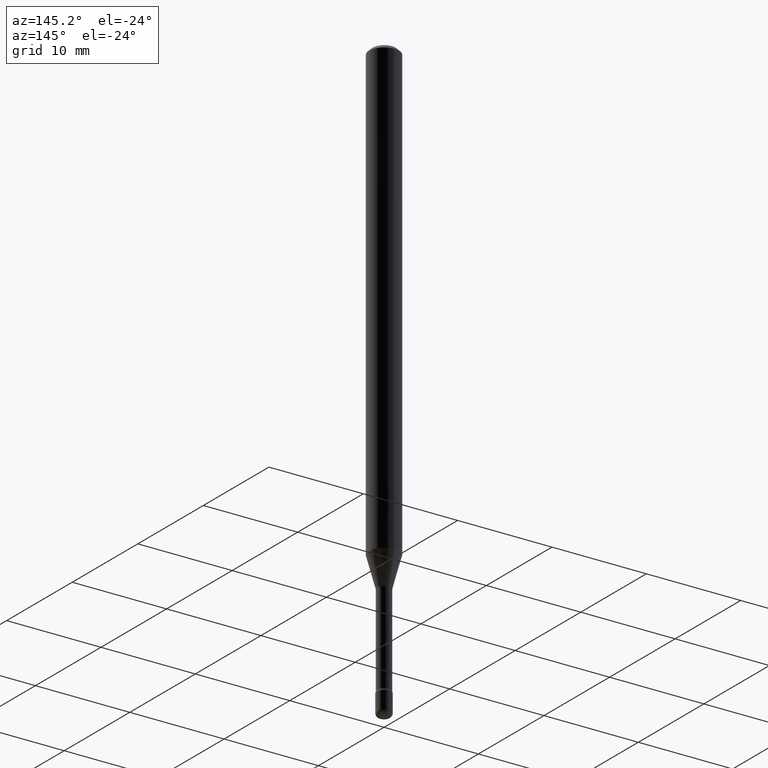
[diagram: clean part render]
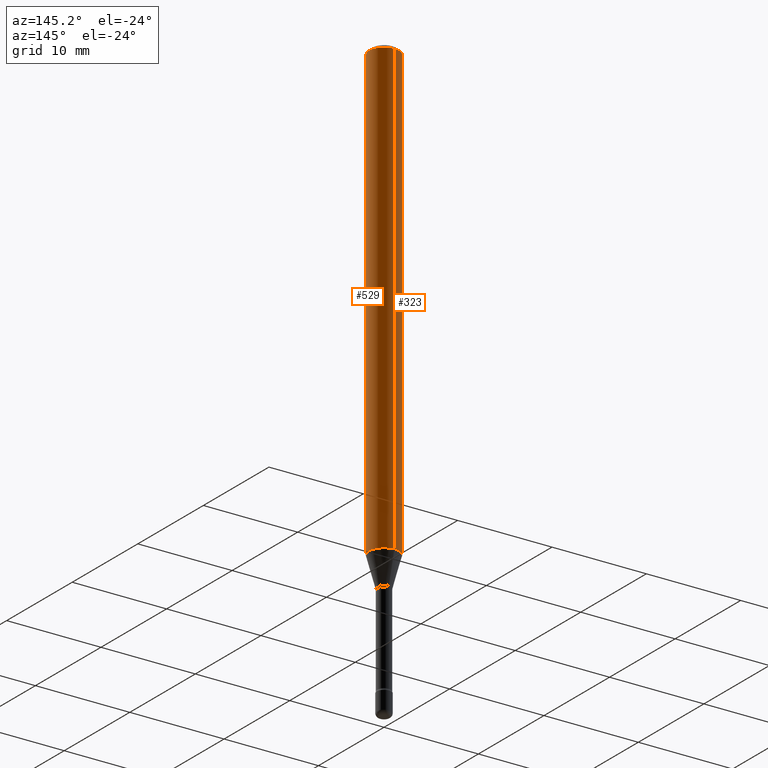
[diagram: same view with one multi-face feature highlighted, each face labeled with its STEP entity id]
A machine part, auxiliary view. The highlighted faces form ONE feature: a constant-radius fillet chain: 2 tangent blend faces with common blend radius 1.5875 mm. The faces share edges in the B-rep.
Their STEP definitions:
[1] entity #323 (Cylinder):
#7 = EDGE_CURVE ( 'NONE', #286, #91, #39, .T. ) ;
#19 = ORIENTED_EDGE ( 'NONE', *, *, #350, .T. ) ;
#39 = CIRCLE ( 'NONE', #172, 0.06250000000000000000 ) ;
#56 = DIRECTION ( 'NONE',  ( -6.982962677686265922E-15, -1.000000000000000000, 4.370956789862821150E-15 ) ) ;
#76 = CARTESIAN_POINT ( 'NONE',  ( -4.364351673553912750E-16, -0.06250000000000005551, -0.01499999999999981036 ) ) ;
#91 = VERTEX_POINT ( 'NONE', #415 ) ;
#106 = CARTESIAN_POINT ( 'NONE',  ( -4.364351673553916201E-16, -0.06250000000000000000, 6.962886991574002702E-16 ) ) ;
#110 = LINE ( 'NONE', #106, #364 ) ;
#120 = CARTESIAN_POINT ( 'NONE',  ( 3.668241477223899538E-31, -5.237167206387711025E-17, -0.01500000000000002720 ) ) ;
#154 = AXIS2_PLACEMENT_3D ( 'NONE', #424, #301, #545 ) ;
#171 = LINE ( 'NONE', #354, #309 ) ;
#172 = AXIS2_PLACEMENT_3D ( 'NONE', #544, #548, #56 ) ;
#175 = CARTESIAN_POINT ( 'NONE',  ( 4.440892098501091590E-16, 0.06249999999999995143, -0.01500000000000024578 ) ) ;
#203 = VERTEX_POINT ( 'NONE', #175 ) ;
#205 = FACE_OUTER_BOUND ( 'NONE', #486, .T. ) ;
#286 = VERTEX_POINT ( 'NONE', #549 ) ;
#295 = DIRECTION ( 'NONE',  ( -2.445494318149262015E-29, 3.491444804258467311E-15, 1.000000000000000000 ) ) ;
#301 = DIRECTION ( 'NONE',  ( -2.445494318149261734E-29, 3.491444804258467311E-15, 1.000000000000000000 ) ) ;
#309 = VECTOR ( 'NONE', #520, 39.37007874015748143 ) ;
#323 = ADVANCED_FACE ( 'NONE', ( #205 ), #509, .T. ) ;
#326 = AXIS2_PLACEMENT_3D ( 'NONE', #120, #557, #483 ) ;
#350 = EDGE_CURVE ( 'NONE', #91, #411, #110, .T. ) ;
#354 = CARTESIAN_POINT ( 'NONE',  ( 4.440892098500625669E-16, 0.06250000000000000000, 2.598580986250918563E-16 ) ) ;
#364 = VECTOR ( 'NONE', #295, 39.37007874015748143 ) ;
#411 = VERTEX_POINT ( 'NONE', #76 ) ;
#415 = CARTESIAN_POINT ( 'NONE',  ( -4.364351673553456197E-16, -0.06250000000000664746, -1.891990657300387513 ) ) ;
#424 = CARTESIAN_POINT ( 'NONE',  ( -1.169113584055446105E-44, 1.669184350826100908E-30, 4.780733988912460139E-16 ) ) ;
#445 = CIRCLE ( 'NONE', #326, 0.06250000000000000000 ) ;
#463 = ORIENTED_EDGE ( 'NONE', *, *, #507, .F. ) ;
#483 = DIRECTION ( 'NONE',  ( -6.982962677686265922E-15, -1.000000000000000000, 3.483106191921935554E-15 ) ) ;
#486 = EDGE_LOOP ( 'NONE', ( #540, #542, #19, #463 ) ) ;
#507 = EDGE_CURVE ( 'NONE', #203, #411, #445, .T. ) ;
#509 = CYLINDRICAL_SURFACE ( 'NONE', #154, 0.06250000000000000000 ) ;
#520 = DIRECTION ( 'NONE',  ( -2.445494318149262015E-29, 3.491444804258467311E-15, 1.000000000000000000 ) ) ;
#539 = EDGE_CURVE ( 'NONE', #286, #203, #171, .T. ) ;
#540 = ORIENTED_EDGE ( 'NONE', *, *, #539, .F. ) ;
#542 = ORIENTED_EDGE ( 'NONE', *, *, #7, .T. ) ;
#544 = CARTESIAN_POINT ( 'NONE',  ( 4.626852402419585505E-29, -6.605780950137001921E-15, -1.891990657300387735 ) ) ;
#545 = DIRECTION ( 'NONE',  ( -6.982962677686265922E-15, -1.000000000000000000, 3.491444804258466917E-15 ) ) ;
#548 = DIRECTION ( 'NONE',  ( -2.445494318149261734E-29, 3.491444804258467311E-15, 1.000000000000000000 ) ) ;
#549 = CARTESIAN_POINT ( 'NONE',  ( 4.440892098501086659E-16, 0.06249999999999337336, -1.891990657300388179 ) ) ;
#557 = DIRECTION ( 'NONE',  ( -2.445494318149261734E-29, 3.491444804258467311E-15, 1.000000000000000000 ) ) ;
[2] entity #529 (Cylinder):
#16 = ORIENTED_EDGE ( 'NONE', *, *, #51, .F. ) ;
#25 = DIRECTION ( 'NONE',  ( -6.982962677686265922E-15, -1.000000000000000000, 3.483106191921935554E-15 ) ) ;
#36 = CYLINDRICAL_SURFACE ( 'NONE', #438, 0.06250000000000000000 ) ;
#51 = EDGE_CURVE ( 'NONE', #411, #203, #425, .T. ) ;
#54 = ORIENTED_EDGE ( 'NONE', *, *, #539, .T. ) ;
#76 = CARTESIAN_POINT ( 'NONE',  ( -4.364351673553912750E-16, -0.06250000000000005551, -0.01499999999999981036 ) ) ;
#91 = VERTEX_POINT ( 'NONE', #415 ) ;
#106 = CARTESIAN_POINT ( 'NONE',  ( -4.364351673553916201E-16, -0.06250000000000000000, 6.962886991574002702E-16 ) ) ;
#110 = LINE ( 'NONE', #106, #364 ) ;
#128 = DIRECTION ( 'NONE',  ( -2.445494318149261734E-29, 3.491444804258467311E-15, 1.000000000000000000 ) ) ;
#140 = ORIENTED_EDGE ( 'NONE', *, *, #350, .F. ) ;
#153 = EDGE_LOOP ( 'NONE', ( #229, #54, #16, #140 ) ) ;
#171 = LINE ( 'NONE', #354, #309 ) ;
#174 = CARTESIAN_POINT ( 'NONE',  ( 4.626852402419585505E-29, -6.605780950137001921E-15, -1.891990657300387735 ) ) ;
#175 = CARTESIAN_POINT ( 'NONE',  ( 4.440892098501091590E-16, 0.06249999999999995143, -0.01500000000000024578 ) ) ;
#203 = VERTEX_POINT ( 'NONE', #175 ) ;
#229 = ORIENTED_EDGE ( 'NONE', *, *, #490, .T. ) ;
#262 = CARTESIAN_POINT ( 'NONE',  ( -1.169113584055446105E-44, 1.669184350826100908E-30, 4.780733988912460139E-16 ) ) ;
#286 = VERTEX_POINT ( 'NONE', #549 ) ;
#295 = DIRECTION ( 'NONE',  ( -2.445494318149262015E-29, 3.491444804258467311E-15, 1.000000000000000000 ) ) ;
#298 = AXIS2_PLACEMENT_3D ( 'NONE', #430, #541, #25 ) ;
#306 = FACE_OUTER_BOUND ( 'NONE', #153, .T. ) ;
#309 = VECTOR ( 'NONE', #520, 39.37007874015748143 ) ;
#314 = DIRECTION ( 'NONE',  ( -2.445494318149261734E-29, 3.491444804258467311E-15, 1.000000000000000000 ) ) ;
#337 = CIRCLE ( 'NONE', #376, 0.06250000000000000000 ) ;
#350 = EDGE_CURVE ( 'NONE', #91, #411, #110, .T. ) ;
#354 = CARTESIAN_POINT ( 'NONE',  ( 4.440892098500625669E-16, 0.06250000000000000000, 2.598580986250918563E-16 ) ) ;
#364 = VECTOR ( 'NONE', #295, 39.37007874015748143 ) ;
#376 = AXIS2_PLACEMENT_3D ( 'NONE', #174, #314, #478 ) ;
#411 = VERTEX_POINT ( 'NONE', #76 ) ;
#415 = CARTESIAN_POINT ( 'NONE',  ( -4.364351673553456197E-16, -0.06250000000000664746, -1.891990657300387513 ) ) ;
#425 = CIRCLE ( 'NONE', #298, 0.06250000000000000000 ) ;
#430 = CARTESIAN_POINT ( 'NONE',  ( 3.668241477223899538E-31, -5.237167206387711025E-17, -0.01500000000000002720 ) ) ;
#438 = AXIS2_PLACEMENT_3D ( 'NONE', #262, #128, #442 ) ;
#442 = DIRECTION ( 'NONE',  ( -6.982962677686265922E-15, -1.000000000000000000, 3.491444804258466917E-15 ) ) ;
#478 = DIRECTION ( 'NONE',  ( -6.982962677686265922E-15, -1.000000000000000000, 4.370956789862821150E-15 ) ) ;
#490 = EDGE_CURVE ( 'NONE', #91, #286, #337, .T. ) ;
#520 = DIRECTION ( 'NONE',  ( -2.445494318149262015E-29, 3.491444804258467311E-15, 1.000000000000000000 ) ) ;
#529 = ADVANCED_FACE ( 'NONE', ( #306 ), #36, .T. ) ;
#539 = EDGE_CURVE ( 'NONE', #286, #203, #171, .T. ) ;
#541 = DIRECTION ( 'NONE',  ( -2.445494318149261734E-29, 3.491444804258467311E-15, 1.000000000000000000 ) ) ;
#549 = CARTESIAN_POINT ( 'NONE',  ( 4.440892098501086659E-16, 0.06249999999999337336, -1.891990657300388179 ) ) ;